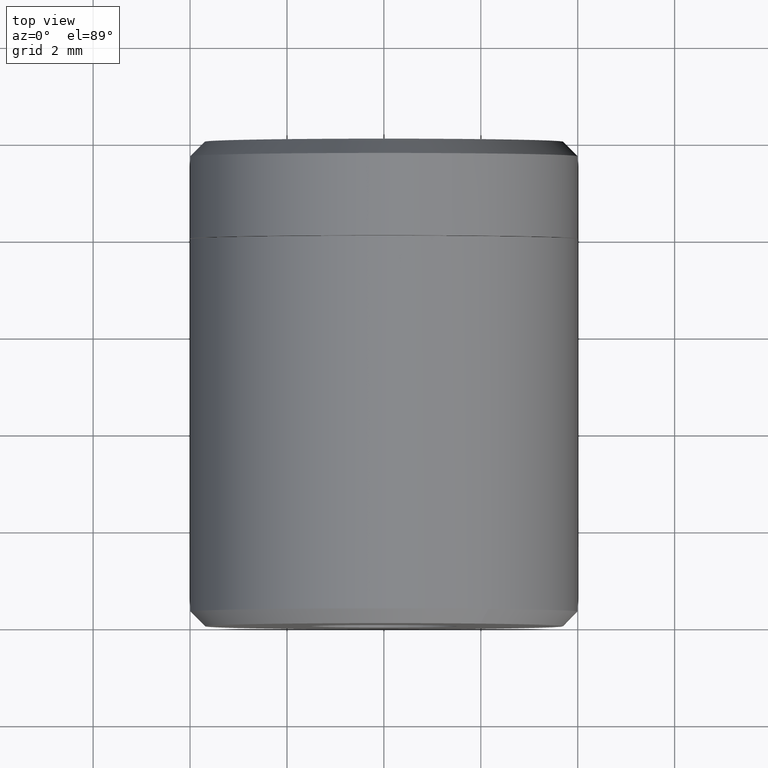
[diagram: clean part render]
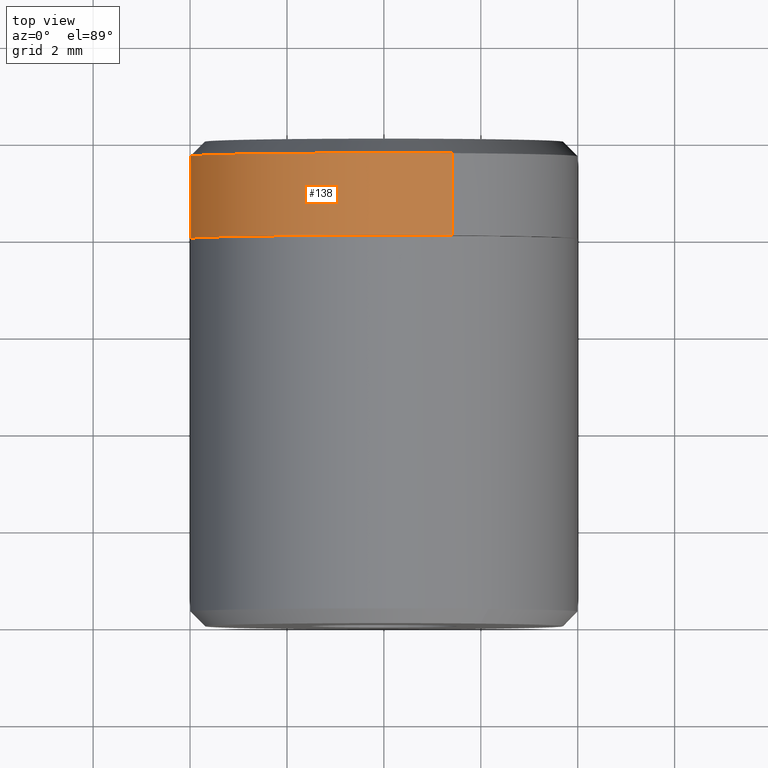
[diagram: same view with one face highlighted and labeled with its STEP entity id]
A machine part, top view. The second image highlights one B-rep face of the part: STEP entity #138.
In plain terms, the highlighted face is a freeform B-spline surface patch.
Its self-contained STEP definition (entity closure, byte-faithful):
#44=CARTESIAN_POINT('',(1.406471545948314,9.742496924999999,3.744573378963047));
#45=CARTESIAN_POINT('',(0.843957595872181,9.742496925000001,3.955855088496580));
#46=CARTESIAN_POINT('',(0.244194097090888,9.742496925000001,3.992538195552666));
#47=CARTESIAN_POINT('',(-3.748344098461780,9.742496925000001,4.236732292643555));
#48=CARTESIAN_POINT('',(-3.992538195552668,9.742496925000001,0.244194097090886));
#49=CARTESIAN_POINT('',(1.406471545948314,7.956437576875000,3.744573378963047));
#50=CARTESIAN_POINT('',(0.843957595872181,7.956437576875000,3.955855088496580));
#51=CARTESIAN_POINT('',(0.244194097090888,7.956437576875000,3.992538195552666));
#52=CARTESIAN_POINT('',(-3.748344098461780,7.956437576875000,4.236732292643555));
#53=CARTESIAN_POINT('',(-3.992538195552668,7.956437576875000,0.244194097090886));
#61=(BOUNDED_SURFACE()B_SPLINE_SURFACE(2,1,((#44,#49),(#45,#50),(#46,#51),(#47,#52),(#48,#53)),.UNSPECIFIED.,.F.,.F.,.U.)B_SPLINE_SURFACE_WITH_KNOTS((3,2,3),(2,2),(0.0,1.325483068223054,7.952898409338326),(0.0,1.0),.UNSPECIFIED.)GEOMETRIC_REPRESENTATION_ITEM()RATIONAL_B_SPLINE_SURFACE(((0.906274169979695,0.906274169979695),(0.941421356237309,0.941421356237309),(1.0,1.0),(0.707106781186548,0.707106781186548),(1.0,1.0)))REPRESENTATION_ITEM('')SURFACE());
#62=CARTESIAN_POINT('',(1.406470727523584,9.699997000001247,3.744574220471318));
#63=VERTEX_POINT('',#62);
#64=CARTESIAN_POINT('',(0.0,9.699997000000000,3.999999999999997));
#65=VERTEX_POINT('',#64);
#66=CARTESIAN_POINT('',(1.406470727523583,9.699997000001249,3.744574220471318));
#67=CARTESIAN_POINT('',(0.726428995726837,9.699997000000000,3.999999999999997));
#68=CARTESIAN_POINT('',(0.0,9.699997000000000,3.999999999999997));
#76=(BOUNDED_CURVE()B_SPLINE_CURVE(2,(#66,#67,#68),.UNSPECIFIED.,.F.,.U.)B_SPLINE_CURVE_WITH_KNOTS((3,3),(0.440284212836687,0.500000000000000),.UNSPECIFIED.)CURVE()GEOMETRIC_REPRESENTATION_ITEM()RATIONAL_B_SPLINE_CURVE((0.893499605957666,0.930038603535032,1.0))REPRESENTATION_ITEM(''));
#77=EDGE_CURVE('',#63,#65,#76,.T.);
#78=ORIENTED_EDGE('',*,*,#77,.T.);
#79=CARTESIAN_POINT('',(-3.992538694620133,9.699996999999630,0.244194127616067));
#80=VERTEX_POINT('',#79);
#81=CARTESIAN_POINT('',(0.0,9.699997000000000,3.999999999999997));
#82=CARTESIAN_POINT('',(-3.762824267619358,9.699997000000000,3.999999999999997));
#83=CARTESIAN_POINT('',(-3.992538694620133,9.699996999999630,0.244194127616067));
#91=(BOUNDED_CURVE()B_SPLINE_CURVE(2,(#81,#82,#83),.UNSPECIFIED.,.F.,.U.)B_SPLINE_CURVE_WITH_KNOTS((3,3),(0.500000000000000,0.739332962241812),.UNSPECIFIED.)CURVE()GEOMETRIC_REPRESENTATION_ITEM()RATIONAL_B_SPLINE_CURVE((1.0,0.719603993283349,0.976072041672866))REPRESENTATION_ITEM(''));
#92=EDGE_CURVE('',#65,#80,#91,.T.);
#93=ORIENTED_EDGE('',*,*,#92,.T.);
#94=CARTESIAN_POINT('',(-3.992538779092364,8.0,0.244192746497483));
#95=VERTEX_POINT('',#94);
#96=CARTESIAN_POINT('',(-3.992538694620133,9.699996999999630,0.244194127616067));
#97=CARTESIAN_POINT('',(-3.992538779092364,8.0,0.244192746497483));
#98=QUASI_UNIFORM_CURVE('',1,(#96,#97),.UNSPECIFIED.,.F.,.U.);
#99=EDGE_CURVE('',#80,#95,#98,.T.);
#100=ORIENTED_EDGE('',*,*,#99,.T.);
#101=CARTESIAN_POINT('',(0.0,8.0,3.999999999999997));
#102=VERTEX_POINT('',#101);
#103=CARTESIAN_POINT('',(0.0,8.0,3.999999999999997));
#104=CARTESIAN_POINT('',(-3.762825571709131,8.0,3.999999999999997));
#105=CARTESIAN_POINT('',(-3.992538779092365,8.0,0.244192746497483));
#113=(BOUNDED_CURVE()B_SPLINE_CURVE(2,(#103,#104,#105),.UNSPECIFIED.,.F.,.U.)B_SPLINE_CURVE_WITH_KNOTS((3,3),(0.500000000000000,0.739333021930164),.UNSPECIFIED.)CURVE()GEOMETRIC_REPRESENTATION_ITEM()RATIONAL_B_SPLINE_CURVE((1.0,0.719603923354095,0.976072169596401))REPRESENTATION_ITEM(''));
#114=EDGE_CURVE('',#102,#95,#113,.T.);
#115=ORIENTED_EDGE('',*,*,#114,.F.);
#116=CARTESIAN_POINT('',(1.406470171425337,8.0,3.744574429342841));
#117=VERTEX_POINT('',#116);
#118=CARTESIAN_POINT('',(1.406470171425337,8.000000000000002,3.744574429342841));
#119=CARTESIAN_POINT('',(0.726428688915489,8.0,3.999999999999996));
#120=CARTESIAN_POINT('',(0.0,8.0,3.999999999999997));
#128=(BOUNDED_CURVE()B_SPLINE_CURVE(2,(#118,#119,#120),.UNSPECIFIED.,.F.,.U.)B_SPLINE_CURVE_WITH_KNOTS((3,3),(0.440284236293467,0.500000000000000),.UNSPECIFIED.)CURVE()GEOMETRIC_REPRESENTATION_ITEM()RATIONAL_B_SPLINE_CURVE((0.893499634663221,0.930038631016360,1.0))REPRESENTATION_ITEM(''));
#129=EDGE_CURVE('',#117,#102,#128,.T.);
#130=ORIENTED_EDGE('',*,*,#129,.F.);
#131=CARTESIAN_POINT('',(1.406470727523584,9.699997000001247,3.744574220471318));
#132=CARTESIAN_POINT('',(1.406470171425337,8.0,3.744574429342841));
#133=QUASI_UNIFORM_CURVE('',1,(#131,#132),.UNSPECIFIED.,.F.,.U.);
#134=EDGE_CURVE('',#63,#117,#133,.T.);
#135=ORIENTED_EDGE('',*,*,#134,.F.);
#136=EDGE_LOOP('',(#78,#93,#100,#115,#130,#135));
#137=FACE_OUTER_BOUND('',#136,.T.);
#138=ADVANCED_FACE('',(#137),#61,.T.);